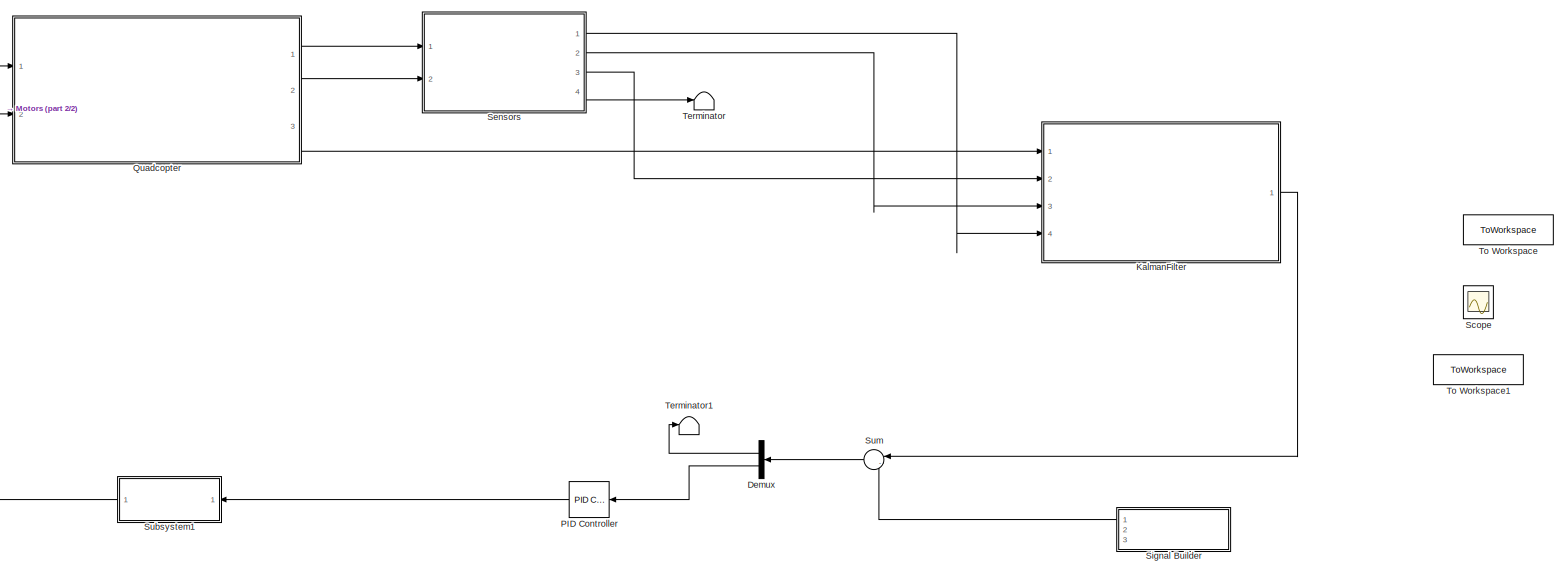
[diagram: root canvas - part 1/2, most of the canvas]
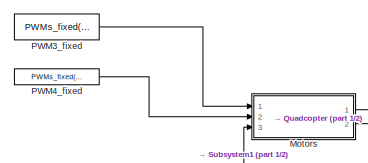
[diagram: root canvas - part 2/2, top left region]
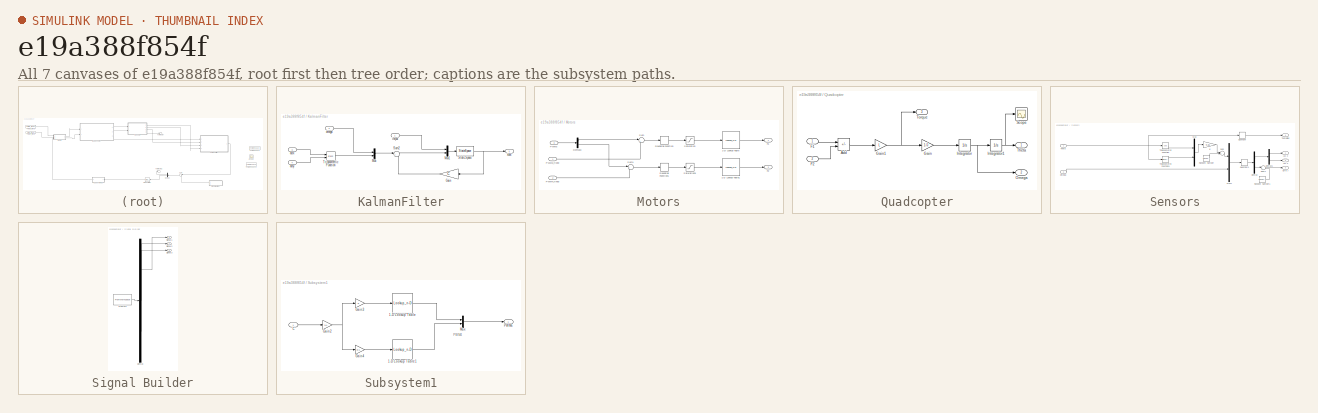
[diagram: thumbnail index - all 7 canvases of the model, root first then tree order]
MODEL slx_e19a388f854f
KIND model
CONFIG AbsTol = auto
CONFIG EnableMultiTasking = off
CONFIG FixedStep = auto
CONFIG MaxStep = auto
CONFIG MinStep = auto
CONFIG RelTol = 1e-3
CONFIG SampleTimeConstraint = Unconstrained
CONFIG SolverName = VariableStepAuto
CONFIG StartTime = 0.0
CONFIG StopTime = 10.0
BLOCK [Demux] Demux
  Outputs = 2
  Ports = [1, 2]
BLOCK [SubSystem] KalmanFilter
  Ports = [4, 1]
  RequestExecContextInheritance = off
BLOCK [Gain] KalmanFilter/Gain
  Gain = C
  Multiplication = Matrix(K*u) (u vector)
BLOCK [Mux] KalmanFilter/Mux
  DisplayOption = bar
  Inputs = 2
  Ports = [2, 1]
BLOCK [Mux] KalmanFilter/Mux1
  DisplayOption = bar
  Inputs = 2
  Ports = [2, 1]
BLOCK [StateSpace] KalmanFilter/State-Space
  A = A
  B = [B Ko]
  C = eye(2,2)
  D = D
  InitialCondition = InitialK
  Ports = [1, 1]
BLOCK [Sum] KalmanFilter/Sum2
  Inputs = |+-
  Ports = [2, 1]
BLOCK [Trigonometry] KalmanFilter/Trigonometric Function
  Operator = atan2
  Ports = [2, 1]
BLOCK [Inport] KalmanFilter/accx
  Port = 3
BLOCK [Inport] KalmanFilter/accy
  Port = 4
BLOCK [Inport] KalmanFilter/intput
BLOCK [Inport] KalmanFilter/omega
  Port = 2
BLOCK [Outport] KalmanFilter/xobs
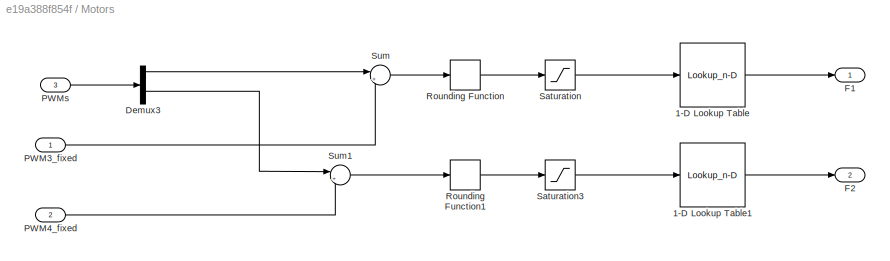
BLOCK [SubSystem] Motors
  Ports = [3, 2]
  RequestExecContextInheritance = off
BLOCK [Lookup_n-D] Motors/1-D Lookup Table
  BreakpointsForDimension1 = [1447,1792]
  InputPortMap = u0
  InternalRulePriority = Speed
  NumberOfTableDimensions = 1
  Ports = [1, 1]
  RndMeth = Simplest
  Table = [1.1,4.8]
BLOCK [Lookup_n-D] Motors/1-D Lookup Table1
  BreakpointsForDimension1 = [1455,1832]
  InputPortMap = u0
  InternalRulePriority = Speed
  NumberOfTableDimensions = 1
  Ports = [1, 1]
  RndMeth = Simplest
  Table = [0.9,5.2]
BLOCK [Demux] Motors/Demux3
  Outputs = 2
  Ports = [1, 2]
BLOCK [Outport] Motors/F1
  VectorParamsAs1DForOutWhenUnconnected = off
BLOCK [Outport] Motors/F2
  Port = 2
  VectorParamsAs1DForOutWhenUnconnected = off
BLOCK [Inport] Motors/PWM3_fixed
BLOCK [Inport] Motors/PWM4_fixed
  Port = 2
BLOCK [Inport] Motors/PWMs
  Port = 3
BLOCK [Rounding] Motors/Rounding Function
  Operator = round
BLOCK [Rounding] Motors/Rounding Function1
  Operator = round
BLOCK [Saturate] Motors/Saturation
  LowerLimit = 1447
  UpperLimit = 1792
BLOCK [Saturate] Motors/Saturation3
  LowerLimit = 1455
  UpperLimit = 1832
BLOCK [Sum] Motors/Sum
  Inputs = |++
  Ports = [2, 1]
BLOCK [Sum] Motors/Sum1
  Inputs = |++
  Ports = [2, 1]
BLOCK [Reference] PID Controller  REF=pid_lib/PID Controller
  Ports = [1, 1]
  SourceBlock = pid_lib/PID Controller
  SourceProductBaseCode = SL
  SourceType = PID 1dof
BLOCK [Constant] PWM3_fixed
  SampleTime = 0.02
  Value = PWMs_fixed(1)
BLOCK [Constant] PWM4_fixed
  SampleTime = 0.02
  Value = PWMs_fixed(2)
BLOCK [SubSystem] Quadcopter
  Ports = [2, 3]
  RequestExecContextInheritance = off
BLOCK [Sum] Quadcopter/Add
  IconShape = rectangular
  Inputs = +-
  Ports = [2, 1]
BLOCK [Inport] Quadcopter/F1
BLOCK [Inport] Quadcopter/F2
  Port = 2
BLOCK [Gain] Quadcopter/Gain
  Gain = 1/J
BLOCK [Gain] Quadcopter/Gain1
  Gain = L
BLOCK [Integrator] Quadcopter/Integrator
  InitialCondition = deg2rad(initial(1))
  Ports = [1, 1]
BLOCK [Integrator] Quadcopter/Integrator1
  InitialCondition = deg2rad(initial(2))
  Ports = [1, 1]
BLOCK [Outport] Quadcopter/Omega
  Port = 2
  VectorParamsAs1DForOutWhenUnconnected = off
BLOCK [Scope] Quadcopter/Scope
  Floating = off
  NumInputPorts = 1
  Ports = [1]
  ScopeSpecificationString = C++SS(StrPVP('Location','[7, 138, 1927, 1112]'),StrPVP('Open','off'),MxPVP('AxesTitles',54,'struct(''axes1'',''%<SignalLabel>'')'),MxPVP('ScopeGraphics',57,'struct(''FigureColor'',''[0.5 0.5 0.5]'',''AxesColor'',''[0 0 0]'',''AxesTickColor'',''[1 1 1]'',''LineColors'',''[1 1 0;1 0 1;0 1 1;1 0 0;0 1 0;0 0 1]'',''LineStyles'',''-|-|-|-|-|-'',''LineWidths'',''[0.5 0.5 0.5 0.5 0.5 0.5]'',''MarkerStyle...<+224ch>
BLOCK [Outport] Quadcopter/Theta
  VectorParamsAs1DForOutWhenUnconnected = off
BLOCK [Outport] Quadcopter/Torque 
  Port = 3
  VectorParamsAs1DForOutWhenUnconnected = off
BLOCK [Scope] Scope
  Floating = off
  NumInputPorts = 2
  Ports = [2]
  ScopeSpecificationString = Simulink.scopes.TimeScopeBlockCfg('CurrentConfiguration', extmgr.ConfigurationSet(extmgr.Configuration('Core','General UI',true),extmgr.Configuration('Core','Source UI',true),extmgr.Configuration('Sources','WiredSimulink',true),extmgr.Configuration('Visuals','Time Domain',true,'SerializedDisplays',{struct('MinYLimReal','-2.39791','MaxYLimReal','0.47755','YLabelReal','','MinYLimMag','0.00000','MaxY...<+2043ch>
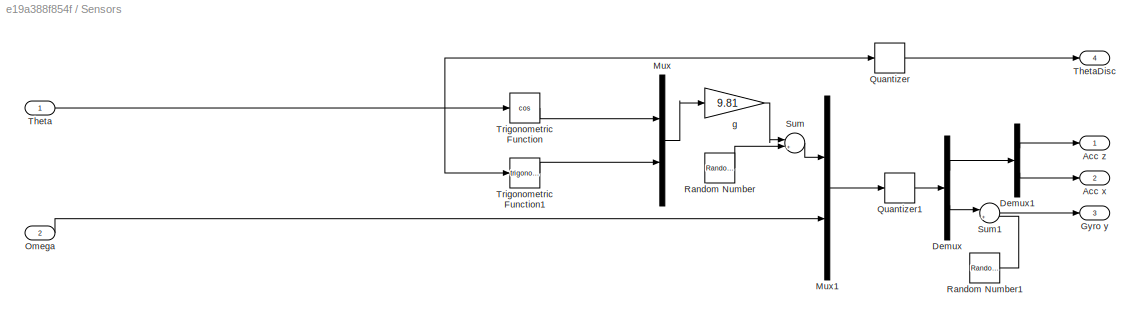
BLOCK [SubSystem] Sensors
  Ports = [2, 4]
  RequestExecContextInheritance = off
BLOCK [Outport] Sensors/Acc x
  Port = 2
  VectorParamsAs1DForOutWhenUnconnected = off
BLOCK [Outport] Sensors/Acc z
  VectorParamsAs1DForOutWhenUnconnected = off
BLOCK [Demux] Sensors/Demux
  Outputs = 2
  Ports = [1, 2]
BLOCK [Demux] Sensors/Demux1
  Outputs = 2
  Ports = [1, 2]
BLOCK [Outport] Sensors/Gyro y
  Port = 3
  VectorParamsAs1DForOutWhenUnconnected = off
BLOCK [Mux] Sensors/Mux
  DisplayOption = bar
  Inputs = 2
  Ports = [2, 1]
BLOCK [Mux] Sensors/Mux1
  DisplayOption = bar
  Inputs = 2
  Ports = [2, 1]
BLOCK [Inport] Sensors/Omega
  Port = 2
BLOCK [Quantizer] Sensors/Quantizer
  QuantizationInterval = 0.01
  SampleTime = 0.02
BLOCK [Quantizer] Sensors/Quantizer1
  QuantizationInterval = 0.01
  SampleTime = 0.02
BLOCK [RandomNumber] Sensors/Random Number
  SampleTime = 0
  Variance = 0.0127
BLOCK [RandomNumber] Sensors/Random Number1
  SampleTime = 0
  Seed = 1
  Variance = 0.00127
BLOCK [Sum] Sensors/Sum
  Inputs = |++
  Ports = [2, 1]
BLOCK [Sum] Sensors/Sum1
  Inputs = |++
  Ports = [2, 1]
BLOCK [Inport] Sensors/Theta
BLOCK [Outport] Sensors/ThetaDisc
  Port = 4
  VectorParamsAs1DForOutWhenUnconnected = off
BLOCK [Trigonometry] Sensors/Trigonometric Function
  Operator = cos
  Ports = [1, 1]
BLOCK [Trigonometry] Sensors/Trigonometric Function1
  Ports = [1, 1]
BLOCK [Gain] Sensors/g
  Gain = 9.81
BLOCK [SubSystem] Signal Builder
  ClipboardFcn = sigbuilder_block('clipboard');
  CloseFcn = sigbuilder_block('close');
  ContinueFcn = sigbuilder_block('continue');
  CopyFcn = sigbuilder_block('copy');
  DeleteFcn = sigbuilder_block('delete');
  LoadFcn = sigbuilder_block('load');
  MaskHideContents = on
  ModelCloseFcn = sigbuilder_block('modelClose');
  NameChangeFcn = sigbuilder_block('namechange');
  OpenFcn = sigbuilder_block('open',[6.75 6.75 1138.5 568.5 ]);
  PauseFcn = sigbuilder_block('pause');
  Ports = [0, 3]
  PreSaveFcn = sigbuilder_block('preSave');
  RequestExecContextInheritance = off
  StartFcn = sigbuilder_block('start');
  StopFcn = sigbuilder_block('stop');
  Tag = STV Subsys
BLOCK [Demux] Signal Builder/Demux
  DisplayOption = none
  Outputs = 3
  Ports = [1, 3]
  Tag = STV Demux
BLOCK [FromWorkspace] Signal Builder/FromWs
  Tag = STV FromWs
  VariableName = tuvar
BLOCK [Outport] Signal Builder/Signal 1
  Tag = STV Outport
  VectorParamsAs1DForOutWhenUnconnected = off
BLOCK [Outport] Signal Builder/Signal 2
  Port = 2
  Tag = STV Outport
  VectorParamsAs1DForOutWhenUnconnected = off
BLOCK [Outport] Signal Builder/Signal 3
  Port = 3
  Tag = STV Outport
  VectorParamsAs1DForOutWhenUnconnected = off
BLOCK [SubSystem] Subsystem1
  Ports = [1, 1]
  RequestExecContextInheritance = off
BLOCK [Lookup_n-D] Subsystem1/1-D Lookup Table
  BreakpointsForDimension1 = [-2,2]
  InputPortMap = u0
  InternalRulePriority = Speed
  NumberOfTableDimensions = 1
  Ports = [1, 1]
  RndMeth = Simplest
  Table = [-138,138]
BLOCK [Lookup_n-D] Subsystem1/1-D Lookup Table1
  BreakpointsForDimension1 = [-2,2]
  InputPortMap = u0
  InternalRulePriority = Speed
  NumberOfTableDimensions = 1
  Ports = [1, 1]
  RndMeth = Simplest
  Table = [-150.8,150.8]
BLOCK [Inport] Subsystem1/C
BLOCK [Gain] Subsystem1/Gain2
  Gain = 1/L
BLOCK [Gain] Subsystem1/Gain3
  Gain = b
BLOCK [Gain] Subsystem1/Gain4
  Gain = b-1
BLOCK [Mux] Subsystem1/Mux
  DisplayOption = bar
  Inputs = 2
  Ports = [2, 1]
BLOCK [Outport] Subsystem1/PWMs
  VectorParamsAs1DForOutWhenUnconnected = off
BLOCK [Sum] Sum
  Inputs = |-+
  Ports = [2, 1]
BLOCK [Terminator] Terminator
BLOCK [Terminator] Terminator1
BLOCK [ToWorkspace] To Workspace
  FixptAsFi = on
  MaxDataPoints = inf
  Ports = [1]
  SampleTime = -1
  SaveFormat = Timeseries
  VariableName = thetas
BLOCK [ToWorkspace] To Workspace1
  FixptAsFi = on
  MaxDataPoints = inf
  Ports = [1]
  SampleTime = -1
  SaveFormat = Timeseries
  VariableName = dthetas
ANNOTATION Subsystem1: PWM4
LINE Demux:1 -> Terminator1:1
LINE Demux:2 -> PID Controller:1
LINE KalmanFilter/Gain:1 -> KalmanFilter/Sum2:2
LINE KalmanFilter/Mux1:1 -> KalmanFilter/State-Space:1
LINE KalmanFilter/Mux:1 -> KalmanFilter/Sum2:1
NET KalmanFilter/State-Space:1 -> KalmanFilter/Gain:1, KalmanFilter/xobs:1
LINE KalmanFilter/Sum2:1 -> KalmanFilter/Mux1:2
LINE KalmanFilter/Trigonometric Function:1 -> KalmanFilter/Mux:2
LINE KalmanFilter/accx:1 -> KalmanFilter/Trigonometric Function:1
LINE KalmanFilter/accy:1 -> KalmanFilter/Trigonometric Function:2
LINE KalmanFilter/intput:1 -> KalmanFilter/Mux1:1
LINE KalmanFilter/omega:1 -> KalmanFilter/Mux:1
LINE KalmanFilter:1 -> Sum:1
LINE Motors/1-D Lookup Table1:1 -> Motors/F2:1
LINE Motors/1-D Lookup Table:1 -> Motors/F1:1
LINE Motors/Demux3:1 -> Motors/Sum:1
LINE Motors/Demux3:2 -> Motors/Sum1:1
LINE Motors/PWM3_fixed:1 -> Motors/Sum:2
LINE Motors/PWM4_fixed:1 -> Motors/Sum1:2
LINE Motors/PWMs:1 -> Motors/Demux3:1
LINE Motors/Rounding Function1:1 -> Motors/Saturation3:1
LINE Motors/Rounding Function:1 -> Motors/Saturation:1
LINE Motors/Saturation3:1 -> Motors/1-D Lookup Table1:1
LINE Motors/Saturation:1 -> Motors/1-D Lookup Table:1
LINE Motors/Sum1:1 -> Motors/Rounding Function1:1
LINE Motors/Sum:1 -> Motors/Rounding Function:1
LINE Motors:1 -> Quadcopter:1
LINE Motors:2 -> Quadcopter:2
LINE PID Controller:1 -> Subsystem1:1
LINE PWM3_fixed:1 -> Motors:1
LINE PWM4_fixed:1 -> Motors:2
LINE Quadcopter/Add:1 -> Quadcopter/Gain1:1
LINE Quadcopter/F1:1 -> Quadcopter/Add:1
LINE Quadcopter/F2:1 -> Quadcopter/Add:2
NET Quadcopter/Gain1:1 -> Quadcopter/Gain:1, Quadcopter/Torque :1
LINE Quadcopter/Gain:1 -> Quadcopter/Integrator:1
NET Quadcopter/Integrator1:1 -> Quadcopter/Scope:1, Quadcopter/Theta:1
NET Quadcopter/Integrator:1 -> Quadcopter/Integrator1:1, Quadcopter/Omega:1
LINE Quadcopter:1 -> Sensors:1
LINE Quadcopter:2 -> Sensors:2
LINE Quadcopter:3 -> KalmanFilter:1
LINE Sensors/Demux1:1 -> Sensors/Acc z:1
LINE Sensors/Demux1:2 -> Sensors/Acc x:1
LINE Sensors/Demux:1 -> Sensors/Demux1:1
LINE Sensors/Demux:2 -> Sensors/Sum1:1
LINE Sensors/Mux1:1 -> Sensors/Quantizer1:1
LINE Sensors/Mux:1 -> Sensors/g:1
LINE Sensors/Omega:1 -> Sensors/Mux1:2
LINE Sensors/Quantizer1:1 -> Sensors/Demux:1
LINE Sensors/Quantizer:1 -> Sensors/ThetaDisc:1
LINE Sensors/Random Number1:1 -> Sensors/Sum1:2
LINE Sensors/Random Number:1 -> Sensors/Sum:2
LINE Sensors/Sum1:1 -> Sensors/Gyro y:1
LINE Sensors/Sum:1 -> Sensors/Mux1:1
NET Sensors/Theta:1 -> Sensors/Quantizer:1, Sensors/Trigonometric Function1:1, Sensors/Trigonometric Function:1
LINE Sensors/Trigonometric Function1:1 -> Sensors/Mux:2
LINE Sensors/Trigonometric Function:1 -> Sensors/Mux:1
LINE Sensors/g:1 -> Sensors/Sum:1
LINE Sensors:1 -> KalmanFilter:4
LINE Sensors:2 -> KalmanFilter:3
LINE Sensors:3 -> KalmanFilter:2
LINE Sensors:4 -> Terminator:1
LINE Signal Builder:1 -> Sum:2
LINE Subsystem1/1-D Lookup Table1:1 -> Subsystem1/Mux:2
LINE Subsystem1/1-D Lookup Table:1 -> Subsystem1/Mux:1
LINE Subsystem1/C:1 -> Subsystem1/Gain2:1
NET Subsystem1/Gain2:1 -> Subsystem1/Gain3:1, Subsystem1/Gain4:1
LINE Subsystem1/Gain3:1 -> Subsystem1/1-D Lookup Table:1
LINE Subsystem1/Gain4:1 -> Subsystem1/1-D Lookup Table1:1
LINE Subsystem1/Mux:1 -> Subsystem1/PWMs:1
LINE Subsystem1:1 -> Motors:3
LINE Sum:1 -> Demux:1
note: NET lines group one-source signal fan-out (src -> all destinations, sorted); 1:1 wires keep LINE
